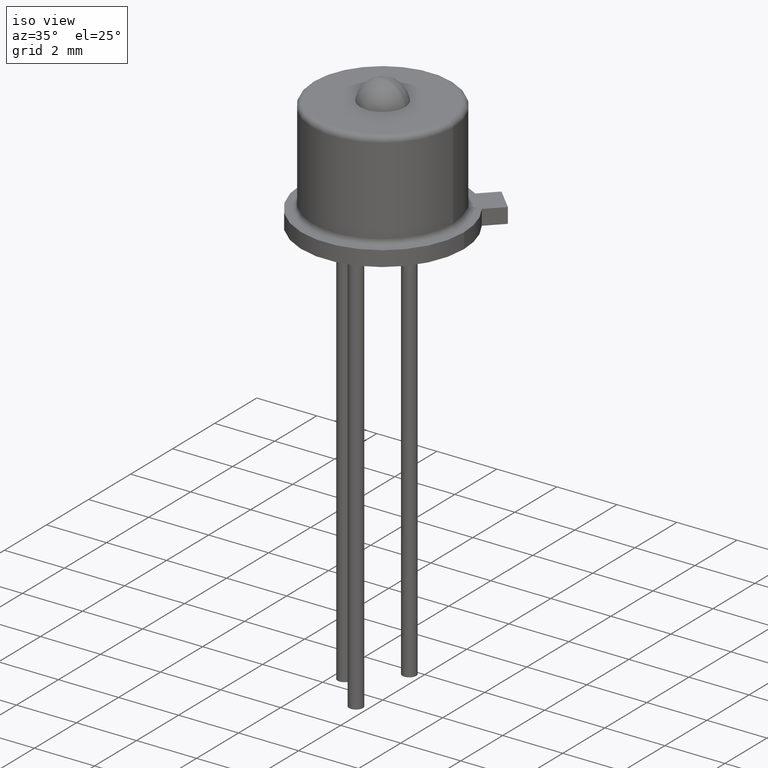
[diagram: clean part render]
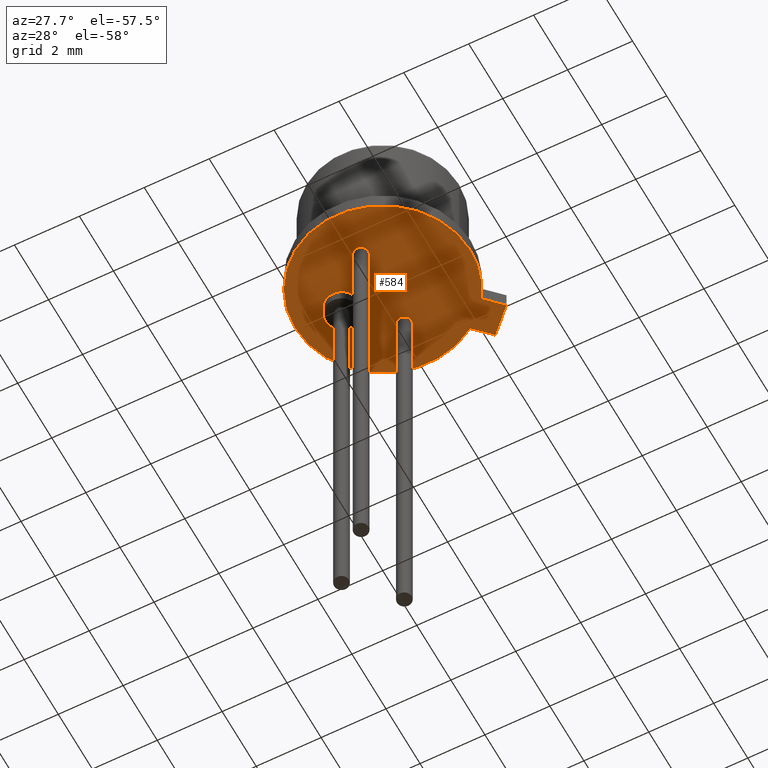
[diagram: tour spotlight — one face highlighted and labeled with its STEP entity id]
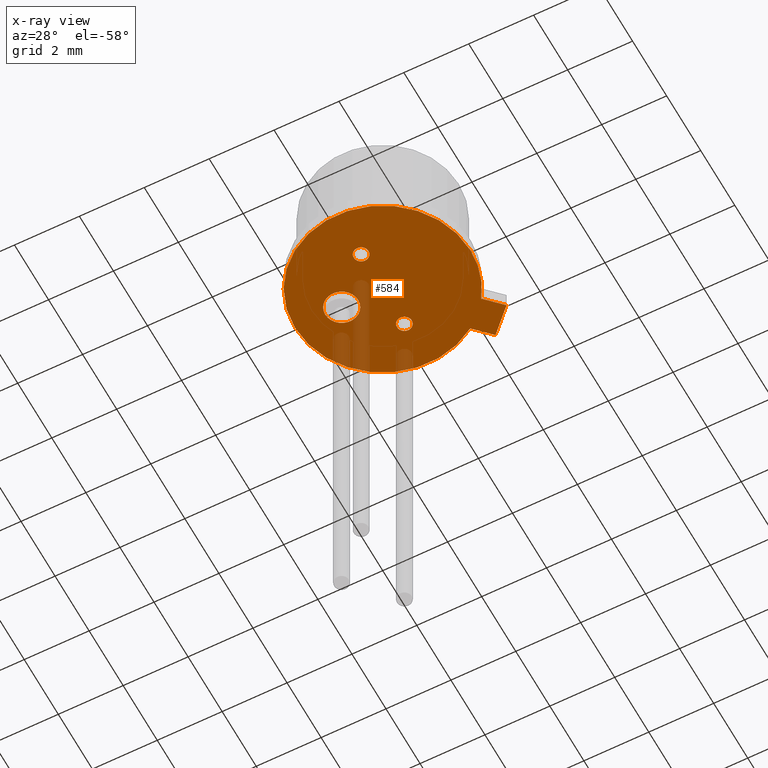
[diagram: x-ray of the same camera — body ghosted, this tour face saturated]
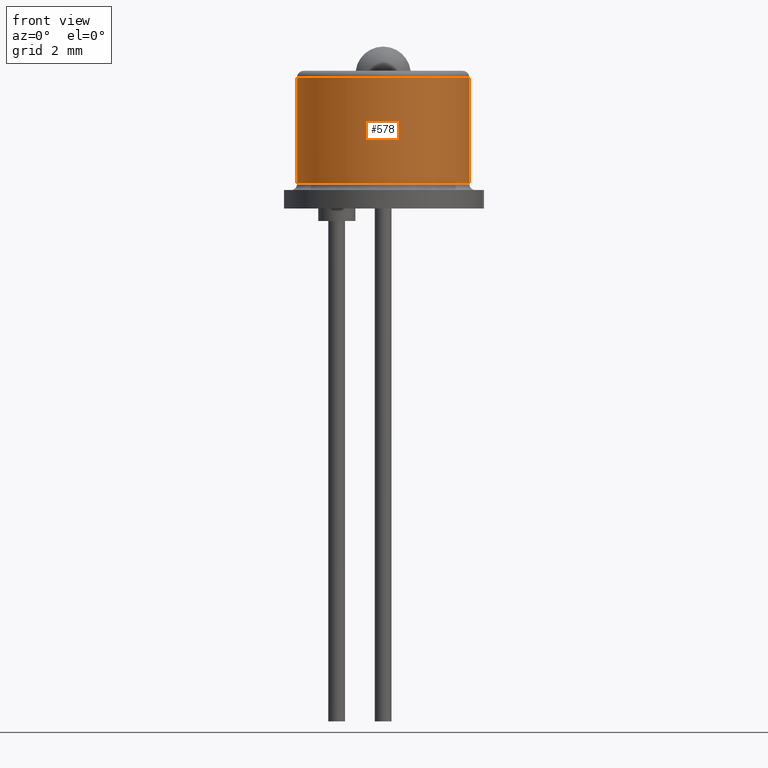
[diagram: tour spotlight — one face highlighted and labeled with its STEP entity id]
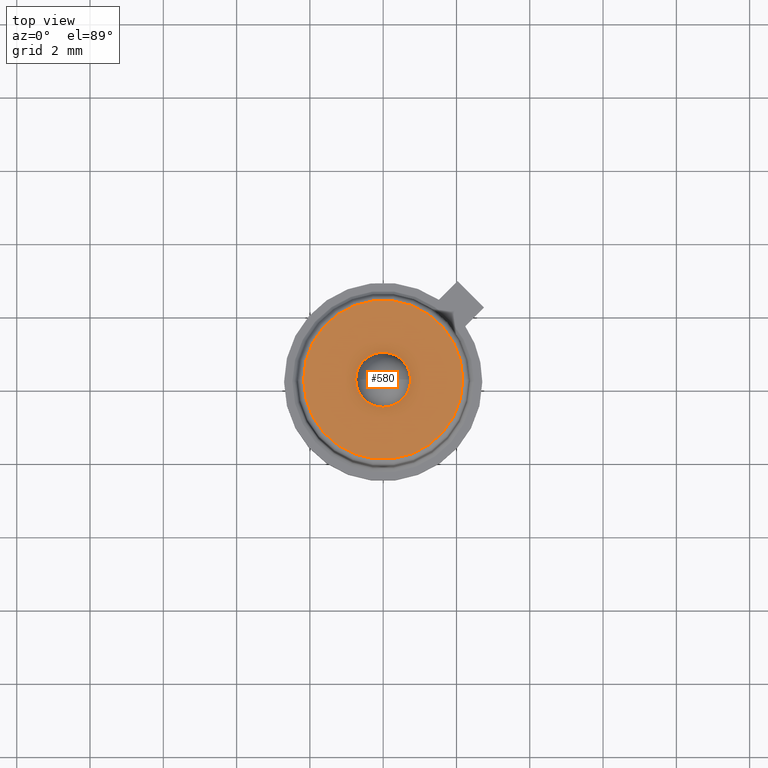
[diagram: tour spotlight — one face highlighted and labeled with its STEP entity id]
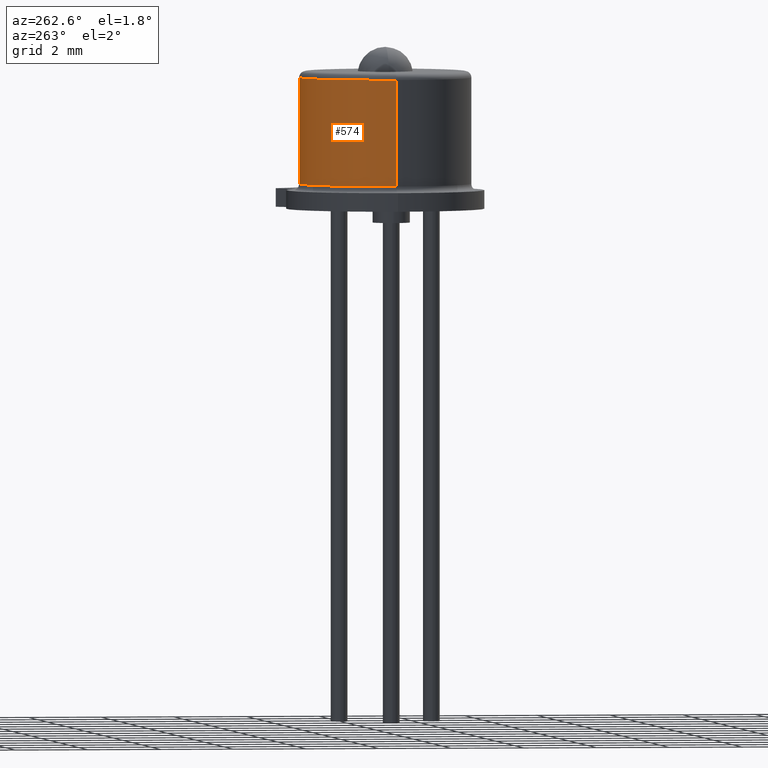
[diagram: tour spotlight — one face highlighted and labeled with its STEP entity id]
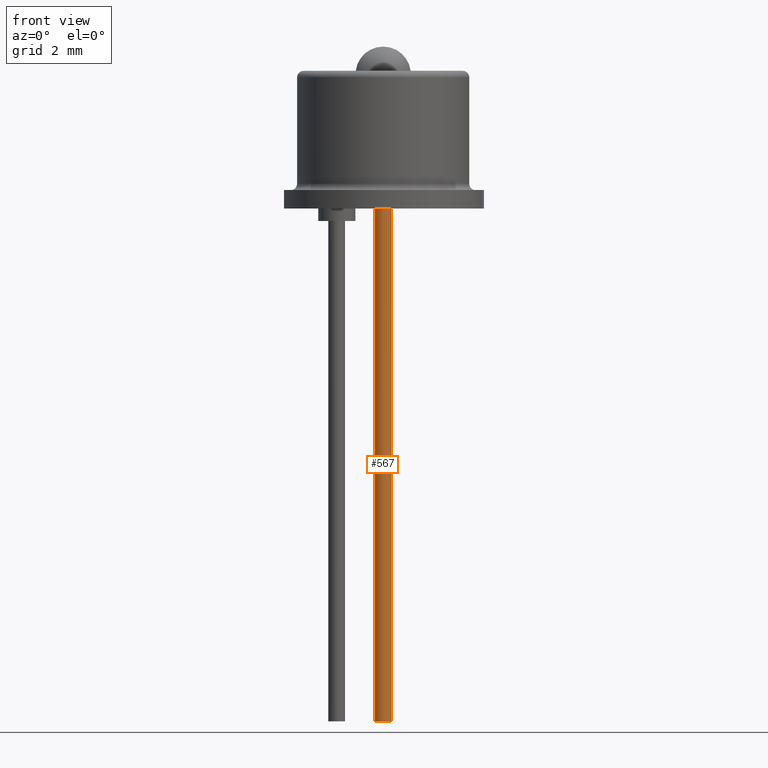
[diagram: tour spotlight — one face highlighted and labeled with its STEP entity id]
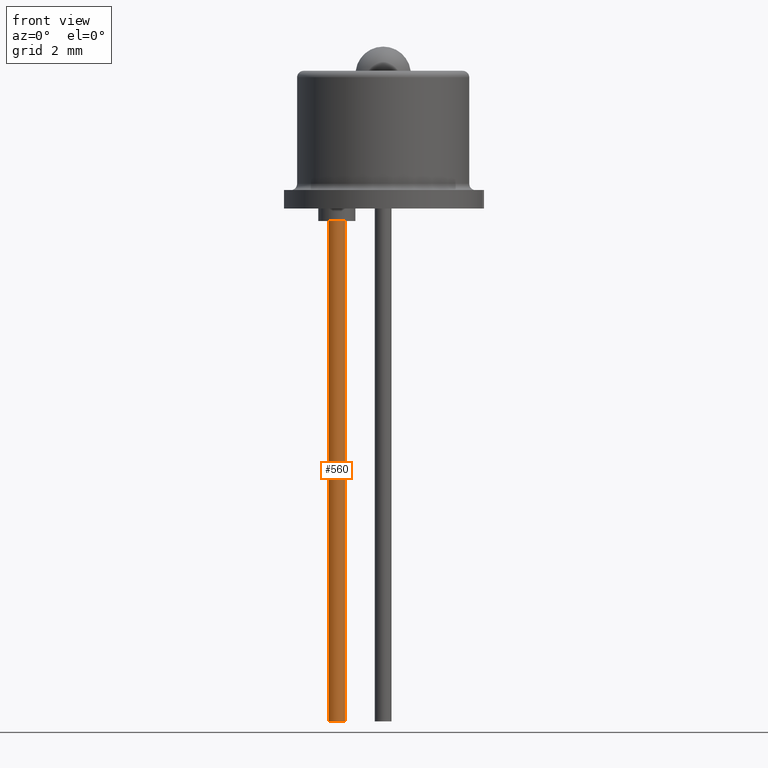
[diagram: tour spotlight — one face highlighted and labeled with its STEP entity id]
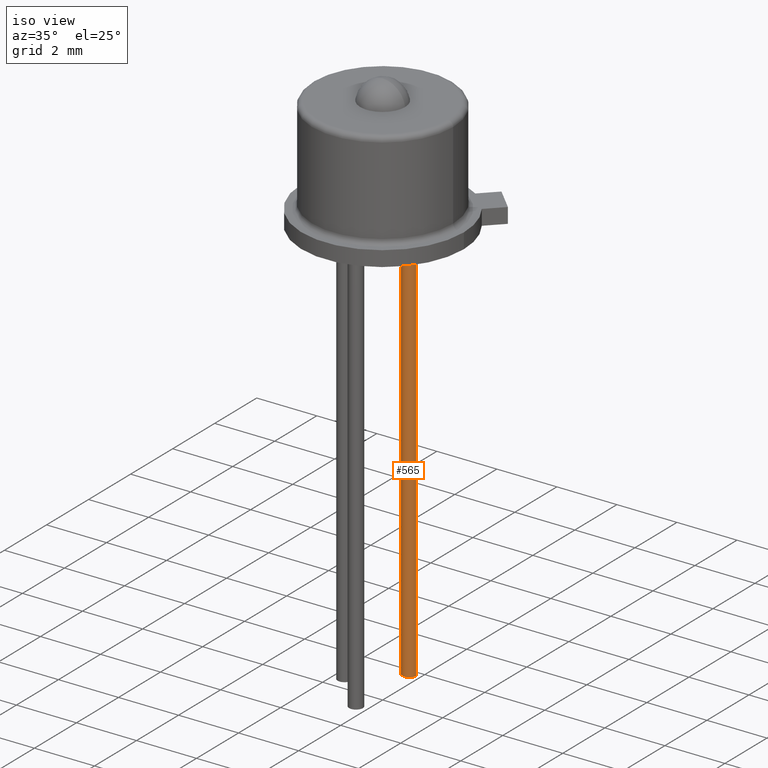
[diagram: tour spotlight — one face highlighted and labeled with its STEP entity id]
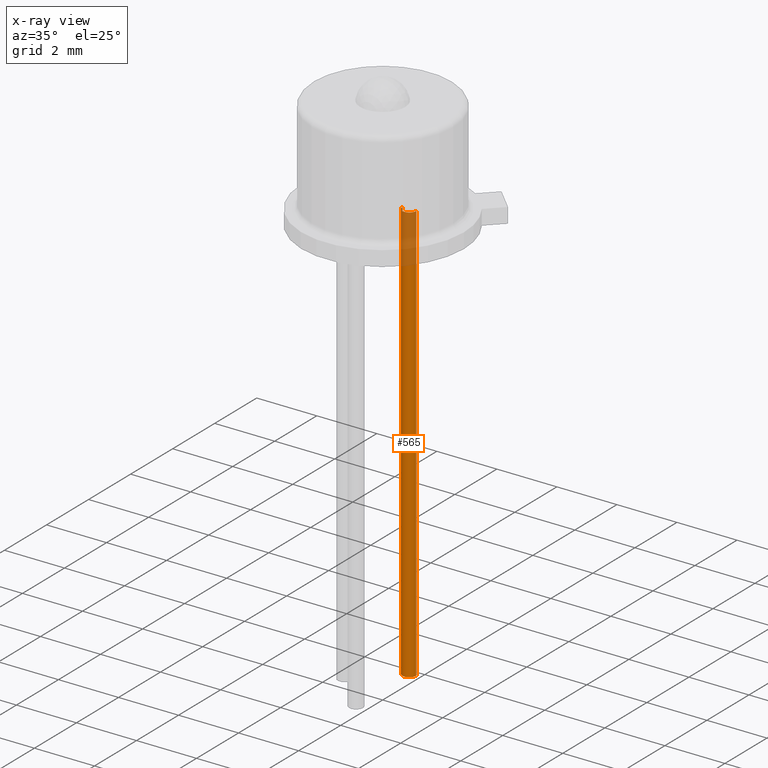
[diagram: x-ray of the same camera — body ghosted, this tour face saturated]
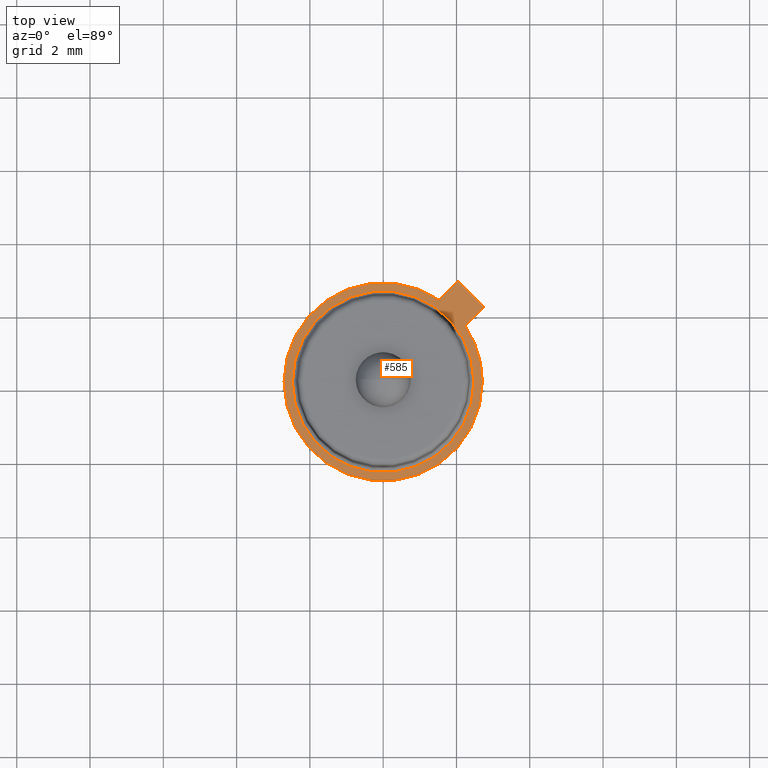
[diagram: tour spotlight — one face highlighted and labeled with its STEP entity id]
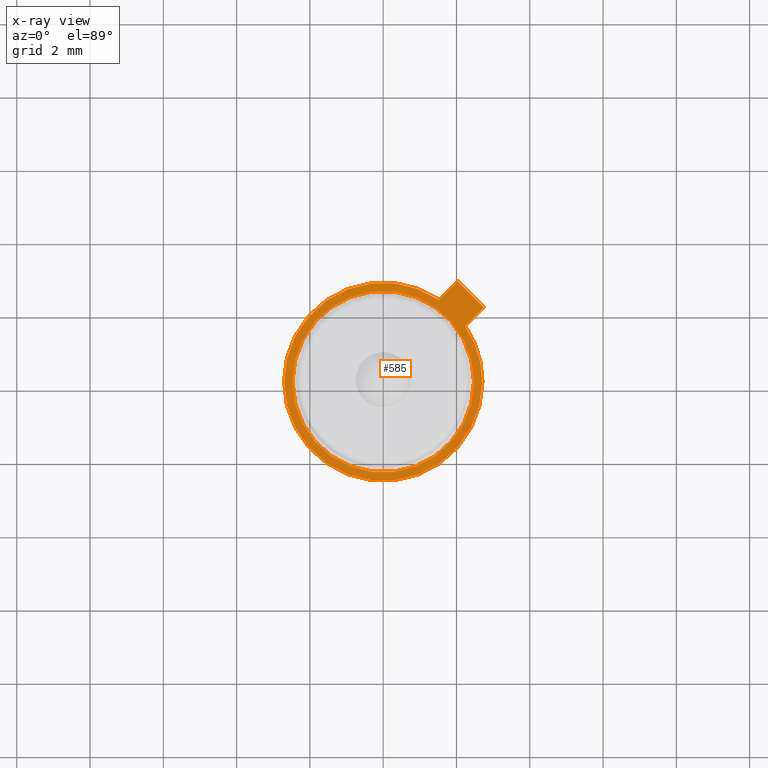
[diagram: x-ray of the same camera — body ghosted, this tour face saturated]
A machine part: a face-by-face anatomy tour. The part has 38 B-rep faces; the first image is the clean iso view, then the 8 largest visible faces are spotlighted one at a time (largest first), each with its STEP entity span.

Face 1 — auxiliary view, entity #584. An x-ray twin of the same camera follows (body ghosted, this face saturated) — the face is partly hidden behind the body. In plain terms, the highlighted planar face has unit normal (0, 0, 1).
Definition (entity closure, byte-faithful):
#48 = ORIENTED_EDGE ( 'NONE', *, *, #542, .F. ) ;
#49 = ORIENTED_EDGE ( 'NONE', *, *, #645, .F. ) ;
#50 = ORIENTED_EDGE ( 'NONE', *, *, #543, .F. ) ;
#51 = ORIENTED_EDGE ( 'NONE', *, *, #545, .F. ) ;
#52 = ORIENTED_EDGE ( 'NONE', *, *, #546, .F. ) ;
#53 = ORIENTED_EDGE ( 'NONE', *, *, #547, .F. ) ;
#54 = ORIENTED_EDGE ( 'NONE', *, *, #548, .F. ) ;
#55 = ORIENTED_EDGE ( 'NONE', *, *, #641, .F. ) ;
#163 = VERTEX_POINT ( 'NONE', #1517 ) ;
#164 = VERTEX_POINT ( 'NONE', #1518 ) ;
#167 = VERTEX_POINT ( 'NONE', #1521 ) ;
#168 = VERTEX_POINT ( 'NONE', #1522 ) ;
#171 = VERTEX_POINT ( 'NONE', #1525 ) ;
#172 = VERTEX_POINT ( 'NONE', #1526 ) ;
#180 = VERTEX_POINT ( 'NONE', #1534 ) ;
#190 = VERTEX_POINT ( 'NONE', #1544 ) ;
#191 = VERTEX_POINT ( 'NONE', #1545 ) ;
#192 = VERTEX_POINT ( 'NONE', #1546 ) ;
#194 = VERTEX_POINT ( 'NONE', #1548 ) ;
#195 = VERTEX_POINT ( 'NONE', #1549 ) ;
#203 = ORIENTED_EDGE ( 'NONE', *, *, #544, .F. ) ;
#204 = ORIENTED_EDGE ( 'NONE', *, *, #541, .F. ) ;
#205 = ORIENTED_EDGE ( 'NONE', *, *, #537, .F. ) ;
#206 = ORIENTED_EDGE ( 'NONE', *, *, #648, .F. ) ;
#209 = EDGE_LOOP ( 'NONE', ( #48, #49 ) ) ;
#211 = EDGE_LOOP ( 'NONE', ( #50, #206 ) ) ;
#223 = EDGE_LOOP ( 'NONE', ( #203, #205, #204, #51, #52, #53 ) ) ;
#227 = EDGE_LOOP ( 'NONE', ( #54, #55 ) ) ;
#275 = CARTESIAN_POINT ( 'NONE',  ( 0.0000000000000000000, 0.0000000000000000000, 0.0000000000000000000 ) ) ;
#276 = DIRECTION ( 'NONE',  ( 0.0000000000000000000, 0.0000000000000000000, 1.000000000000000000 ) ) ;
#277 = DIRECTION ( 'NONE',  ( 1.000000000000000000, 0.0000000000000000000, 0.0000000000000000000 ) ) ;
#279 = DIRECTION ( 'NONE',  ( 0.7071067811865482400, 0.7071067811865468000, -0.0000000000000000000 ) ) ;
#283 = DIRECTION ( 'NONE',  ( -0.7071067811865474600, -0.7071067811865474600, 0.0000000000000000000 ) ) ;
#284 = CARTESIAN_POINT ( 'NONE',  ( 0.0000000000000000000, 0.0000000000000000000, 0.0000000000000000000 ) ) ;
#285 = DIRECTION ( 'NONE',  ( 0.0000000000000000000, 0.0000000000000000000, 1.000000000000000000 ) ) ;
#286 = DIRECTION ( 'NONE',  ( 1.000000000000000000, 0.0000000000000000000, 0.0000000000000000000 ) ) ;
#287 = CARTESIAN_POINT ( 'NONE',  ( 1.024442997624098700E-016, 0.04999999999999998200, 0.0000000000000000000 ) ) ;
#288 = DIRECTION ( 'NONE',  ( -0.0000000000000000000, -0.0000000000000000000, -1.000000000000000000 ) ) ;
#289 = DIRECTION ( 'NONE',  ( 1.000000000000000000, 0.0000000000000000000, 0.0000000000000000000 ) ) ;
#290 = CARTESIAN_POINT ( 'NONE',  ( 0.1082538055589732800, 0.08001337493194495000, 0.0000000000000000000 ) ) ;
#291 = CARTESIAN_POINT ( 'NONE',  ( 0.0000000000000000000, -0.05000000000000000300, 0.0000000000000000000 ) ) ;
#292 = DIRECTION ( 'NONE',  ( -0.0000000000000000000, -0.0000000000000000000, -1.000000000000000000 ) ) ;
#293 = DIRECTION ( 'NONE',  ( 1.000000000000000000, 0.0000000000000000000, 0.0000000000000000000 ) ) ;
#294 = CARTESIAN_POINT ( 'NONE',  ( 0.1082538055589732800, 0.08001337493194495000, 0.0000000000000000000 ) ) ;
#295 = CARTESIAN_POINT ( 'NONE',  ( 0.08001337493194493600, 0.1082538055589732900, 0.0000000000000000000 ) ) ;
#296 = CARTESIAN_POINT ( 'NONE',  ( 0.0000000000000000000, 0.0000000000000000000, 0.0000000000000000000 ) ) ;
#297 = DIRECTION ( 'NONE',  ( 0.0000000000000000000, 0.0000000000000000000, 1.000000000000000000 ) ) ;
#298 = DIRECTION ( 'NONE',  ( 1.000000000000000000, 0.0000000000000000000, 0.0000000000000000000 ) ) ;
#299 = DIRECTION ( 'NONE',  ( -0.7071067811865474600, 0.7071067811865474600, 0.0000000000000000000 ) ) ;
#303 = CARTESIAN_POINT ( 'NONE',  ( -0.04978545538498040800, 0.0000000000000000000, 0.0000000000000000000 ) ) ;
#304 = DIRECTION ( 'NONE',  ( -0.0000000000000000000, -0.0000000000000000000, -1.000000000000000000 ) ) ;
#305 = DIRECTION ( 'NONE',  ( 1.000000000000000000, 0.0000000000000000000, 0.0000000000000000000 ) ) ;
#515 = DIRECTION ( 'NONE',  ( -0.0000000000000000000, -0.0000000000000000000, -1.000000000000000000 ) ) ;
#529 = DIRECTION ( 'NONE',  ( 1.000000000000000000, 0.0000000000000000000, 0.0000000000000000000 ) ) ;
#537 = EDGE_CURVE ( 'NONE', #191, #192, #1427, .T. ) ;
#541 = EDGE_CURVE ( 'NONE', #194, #191, #1433, .T. ) ;
#542 = EDGE_CURVE ( 'NONE', #168, #167, #1438, .T. ) ;
#543 = EDGE_CURVE ( 'NONE', #172, #171, #1436, .T. ) ;
#544 = EDGE_CURVE ( 'NONE', #192, #180, #1439, .T. ) ;
#545 = EDGE_CURVE ( 'NONE', #190, #194, #1441, .T. ) ;
#546 = EDGE_CURVE ( 'NONE', #195, #190, #1440, .T. ) ;
#547 = EDGE_CURVE ( 'NONE', #180, #195, #1443, .T. ) ;
#548 = EDGE_CURVE ( 'NONE', #164, #163, #1444, .T. ) ;
#584 = ADVANCED_FACE ( 'NONE', ( #1225, #1222, #1226, #1224 ), #1006, .F. ) ;
#641 = EDGE_CURVE ( 'NONE', #163, #164, #1312, .T. ) ;
#645 = EDGE_CURVE ( 'NONE', #167, #168, #1317, .T. ) ;
#648 = EDGE_CURVE ( 'NONE', #171, #172, #1328, .T. ) ;
#670 = AXIS2_PLACEMENT_3D ( 'NONE', #275, #276, #277 ) ;
#672 = AXIS2_PLACEMENT_3D ( 'NONE', #284, #285, #286 ) ;
#673 = AXIS2_PLACEMENT_3D ( 'NONE', #287, #288, #289 ) ;
#674 = AXIS2_PLACEMENT_3D ( 'NONE', #291, #292, #293 ) ;
#675 = AXIS2_PLACEMENT_3D ( 'NONE', #296, #297, #298 ) ;
#676 = AXIS2_PLACEMENT_3D ( 'NONE', #303, #304, #305 ) ;
#900 = AXIS2_PLACEMENT_3D ( 'NONE', #1014, #1015, #1016 ) ;
#1006 = PLANE ( 'NONE',  #900 ) ;
#1014 = CARTESIAN_POINT ( 'NONE',  ( 0.0000000000000000000, 0.0000000000000000000, 0.0000000000000000000 ) ) ;
#1015 = DIRECTION ( 'NONE',  ( 0.0000000000000000000, 0.0000000000000000000, 1.000000000000000000 ) ) ;
#1016 = DIRECTION ( 'NONE',  ( 1.000000000000000000, 0.0000000000000000000, -0.0000000000000000000 ) ) ;
#1204 = CARTESIAN_POINT ( 'NONE',  ( -0.04978545538498040800, 0.0000000000000000000, 0.0000000000000000000 ) ) ;
#1205 = DIRECTION ( 'NONE',  ( -0.0000000000000000000, -0.0000000000000000000, -1.000000000000000000 ) ) ;
#1206 = DIRECTION ( 'NONE',  ( 1.000000000000000000, 0.0000000000000000000, 0.0000000000000000000 ) ) ;
#1212 = CARTESIAN_POINT ( 'NONE',  ( 1.024442997624098700E-016, 0.04999999999999998200, 0.0000000000000000000 ) ) ;
#1213 = DIRECTION ( 'NONE',  ( -0.0000000000000000000, -0.0000000000000000000, -1.000000000000000000 ) ) ;
#1214 = DIRECTION ( 'NONE',  ( 1.000000000000000000, 0.0000000000000000000, 0.0000000000000000000 ) ) ;
#1220 = CARTESIAN_POINT ( 'NONE',  ( 0.0000000000000000000, -0.05000000000000000300, 0.0000000000000000000 ) ) ;
#1222 = FACE_BOUND ( 'NONE', #211, .T. ) ;
#1224 = FACE_BOUND ( 'NONE', #227, .T. ) ;
#1225 = FACE_BOUND ( 'NONE', #209, .T. ) ;
#1226 = FACE_OUTER_BOUND ( 'NONE', #223, .T. ) ;
#1312 = CIRCLE ( 'NONE', #1352, 0.01996900000000000100 ) ;
#1317 = CIRCLE ( 'NONE', #1354, 0.008999999999999997600 ) ;
#1328 = CIRCLE ( 'NONE', #1356, 0.008999999999999997600 ) ;
#1352 = AXIS2_PLACEMENT_3D ( 'NONE', #1204, #1205, #1206 ) ;
#1354 = AXIS2_PLACEMENT_3D ( 'NONE', #1212, #1213, #1214 ) ;
#1356 = AXIS2_PLACEMENT_3D ( 'NONE', #1220, #515, #529 ) ;
#1427 = CIRCLE ( 'NONE', #670, 0.1065000000000000100 ) ;
#1433 = CIRCLE ( 'NONE', #672, 0.1065000000000000100 ) ;
#1436 = CIRCLE ( 'NONE', #674, 0.008999999999999997600 ) ;
#1438 = CIRCLE ( 'NONE', #673, 0.008999999999999997600 ) ;
#1439 = LINE ( 'NONE', #290, #1442 ) ;
#1440 = LINE ( 'NONE', #295, #1445 ) ;
#1441 = CIRCLE ( 'NONE', #675, 0.1065000000000000100 ) ;
#1442 = VECTOR ( 'NONE', #279, 39.37007874015748100 ) ;
#1443 = LINE ( 'NONE', #294, #1447 ) ;
#1444 = CIRCLE ( 'NONE', #676, 0.01996900000000000100 ) ;
#1445 = VECTOR ( 'NONE', #283, 39.37007874015748900 ) ;
#1447 = VECTOR ( 'NONE', #299, 39.37007874015748900 ) ;
#1517 = CARTESIAN_POINT ( 'NONE',  ( -0.06975445538498041600, 2.445497193217349500E-018, 0.0000000000000000000 ) ) ;
#1518 = CARTESIAN_POINT ( 'NONE',  ( -0.02981645538498040400, 0.0000000000000000000, 0.0000000000000000000 ) ) ;
#1521 = CARTESIAN_POINT ( 'NONE',  ( -0.008999999999999895200, 0.04999999999999998200, 0.0000000000000000000 ) ) ;
#1522 = CARTESIAN_POINT ( 'NONE',  ( 0.009000000000000099900, 0.04999999999999998200, 0.0000000000000000000 ) ) ;
#1525 = CARTESIAN_POINT ( 'NONE',  ( -0.008999999999999997600, -0.05000000000000000300, 0.0000000000000000000 ) ) ;
#1526 = CARTESIAN_POINT ( 'NONE',  ( 0.008999999999999997600, -0.05000000000000000300, 0.0000000000000000000 ) ) ;
#1534 = CARTESIAN_POINT ( 'NONE',  ( 0.1082538055589732800, 0.08001337493194495000, 0.0000000000000000000 ) ) ;
#1544 = CARTESIAN_POINT ( 'NONE',  ( 0.05985102585154942300, 0.08809145647857778700, 0.0000000000000000000 ) ) ;
#1545 = CARTESIAN_POINT ( 'NONE',  ( 0.1065000000000000100, 1.304248841091931400E-017, 0.0000000000000000000 ) ) ;
#1546 = CARTESIAN_POINT ( 'NONE',  ( 0.08809145647857775900, 0.05985102585154945100, 0.0000000000000000000 ) ) ;
#1548 = CARTESIAN_POINT ( 'NONE',  ( -0.1065000000000000100, 0.0000000000000000000, 0.0000000000000000000 ) ) ;
#1549 = CARTESIAN_POINT ( 'NONE',  ( 0.08001337493194493600, 0.1082538055589732900, 0.0000000000000000000 ) ) ;

Face 2 — front view, entity #578. In plain terms, the highlighted cylindrical surface (partial cylindrical patch) has radius 2.3495 mm, axis along (-0, -0, -1).
Definition (entity closure, byte-faithful):
#100 = ORIENTED_EDGE ( 'NONE', *, *, #653, .F. ) ;
#101 = ORIENTED_EDGE ( 'NONE', *, *, #612, .T. ) ;
#102 = ORIENTED_EDGE ( 'NONE', *, *, #658, .T. ) ;
#103 = ORIENTED_EDGE ( 'NONE', *, *, #656, .F. ) ;
#173 = VERTEX_POINT ( 'NONE', #1527 ) ;
#174 = VERTEX_POINT ( 'NONE', #1528 ) ;
#175 = VERTEX_POINT ( 'NONE', #1529 ) ;
#176 = VERTEX_POINT ( 'NONE', #1530 ) ;
#238 = EDGE_LOOP ( 'NONE', ( #100, #101, #102, #103 ) ) ;
#504 = CARTESIAN_POINT ( 'NONE',  ( 0.0000000000000000000, 0.0000000000000000000, 0.01996900000000000100 ) ) ;
#505 = DIRECTION ( 'NONE',  ( -0.0000000000000000000, -0.0000000000000000000, -1.000000000000000000 ) ) ;
#514 = DIRECTION ( 'NONE',  ( -1.000000000000000000, 0.0000000000000000000, 0.0000000000000000000 ) ) ;
#578 = ADVANCED_FACE ( 'NONE', ( #799 ), #805, .T. ) ;
#612 = EDGE_CURVE ( 'NONE', #174, #173, #1281, .T. ) ;
#653 = EDGE_CURVE ( 'NONE', #174, #175, #1334, .T. ) ;
#656 = EDGE_CURVE ( 'NONE', #175, #176, #1338, .T. ) ;
#658 = EDGE_CURVE ( 'NONE', #173, #176, #1339, .T. ) ;
#799 = FACE_OUTER_BOUND ( 'NONE', #238, .T. ) ;
#805 = CYLINDRICAL_SURFACE ( 'NONE', #879, 0.09249999999999999900 ) ;
#879 = AXIS2_PLACEMENT_3D ( 'NONE', #504, #505, #514 ) ;
#943 = AXIS2_PLACEMENT_3D ( 'NONE', #1120, #1121, #1122 ) ;
#1120 = CARTESIAN_POINT ( 'NONE',  ( 0.0000000000000000000, 0.0000000000000000000, 0.1409999959614064700 ) ) ;
#1121 = DIRECTION ( 'NONE',  ( -0.0000000000000000000, -0.0000000000000000000, -1.000000000000000000 ) ) ;
#1122 = DIRECTION ( 'NONE',  ( -1.000000000000000000, 0.0000000000000000000, 0.0000000000000000000 ) ) ;
#1281 = CIRCLE ( 'NONE', #943, 0.09249999999999998500 ) ;
#1334 = LINE ( 'NONE', #1377, #1336 ) ;
#1336 = VECTOR ( 'NONE', #1378, 39.37007874015748100 ) ;
#1338 = CIRCLE ( 'NONE', #1362, 0.09249999999999999900 ) ;
#1339 = LINE ( 'NONE', #1385, #1341 ) ;
#1341 = VECTOR ( 'NONE', #1392, 39.37007874015748100 ) ;
#1362 = AXIS2_PLACEMENT_3D ( 'NONE', #1393, #1394, #1395 ) ;
#1377 = CARTESIAN_POINT ( 'NONE',  ( 0.09249999999999999900, 1.132798289211301800E-017, 0.01996900000000000100 ) ) ;
#1378 = DIRECTION ( 'NONE',  ( -0.0000000000000000000, -0.0000000000000000000, -1.000000000000000000 ) ) ;
#1385 = CARTESIAN_POINT ( 'NONE',  ( -0.09249999999999999900, 0.0000000000000000000, 0.01996900000000000100 ) ) ;
#1392 = DIRECTION ( 'NONE',  ( -0.0000000000000000000, -0.0000000000000000000, -1.000000000000000000 ) ) ;
#1393 = CARTESIAN_POINT ( 'NONE',  ( 0.0000000000000000000, 0.0000000000000000000, 0.02669046243955909600 ) ) ;
#1394 = DIRECTION ( 'NONE',  ( -0.0000000000000000000, -0.0000000000000000000, -1.000000000000000000 ) ) ;
#1395 = DIRECTION ( 'NONE',  ( -1.000000000000000000, 0.0000000000000000000, 0.0000000000000000000 ) ) ;
#1527 = CARTESIAN_POINT ( 'NONE',  ( -0.09249999999999998500, 0.0000000000000000000, 0.1409999959614064700 ) ) ;
#1528 = CARTESIAN_POINT ( 'NONE',  ( 0.09249999999999998500, 1.132798289211301200E-017, 0.1409999959614064700 ) ) ;
#1529 = CARTESIAN_POINT ( 'NONE',  ( 0.09249999999999999900, 1.132798289211301800E-017, 0.02669046243955909600 ) ) ;
#1530 = CARTESIAN_POINT ( 'NONE',  ( -0.09249999999999999900, 0.0000000000000000000, 0.02669046243955909600 ) ) ;

Face 3 — top view, entity #580. In plain terms, the highlighted planar face has unit normal (0, 0, 1).
Definition (entity closure, byte-faithful):
#92 = ORIENTED_EDGE ( 'NONE', *, *, #610, .T. ) ;
#93 = ORIENTED_EDGE ( 'NONE', *, *, #629, .T. ) ;
#94 = ORIENTED_EDGE ( 'NONE', *, *, #652, .F. ) ;
#95 = ORIENTED_EDGE ( 'NONE', *, *, #611, .F. ) ;
#154 = VERTEX_POINT ( 'NONE', #1500 ) ;
#177 = VERTEX_POINT ( 'NONE', #1531 ) ;
#178 = VERTEX_POINT ( 'NONE', #1532 ) ;
#181 = VERTEX_POINT ( 'NONE', #1535 ) ;
#232 = EDGE_LOOP ( 'NONE', ( #94, #95 ) ) ;
#236 = EDGE_LOOP ( 'NONE', ( #92, #93 ) ) ;
#528 = PLANE ( 'NONE',  #888 ) ;
#580 = ADVANCED_FACE ( 'NONE', ( #811, #808 ), #528, .T. ) ;
#610 = EDGE_CURVE ( 'NONE', #154, #181, #1279, .T. ) ;
#611 = EDGE_CURVE ( 'NONE', #178, #177, #1280, .T. ) ;
#629 = EDGE_CURVE ( 'NONE', #181, #154, #1294, .T. ) ;
#652 = EDGE_CURVE ( 'NONE', #177, #178, #1333, .T. ) ;
#808 = FACE_OUTER_BOUND ( 'NONE', #232, .T. ) ;
#811 = FACE_BOUND ( 'NONE', #236, .T. ) ;
#888 = AXIS2_PLACEMENT_3D ( 'NONE', #983, #984, #985 ) ;
#941 = AXIS2_PLACEMENT_3D ( 'NONE', #1114, #1115, #1116 ) ;
#942 = AXIS2_PLACEMENT_3D ( 'NONE', #1117, #1118, #1119 ) ;
#959 = AXIS2_PLACEMENT_3D ( 'NONE', #1173, #1174, #1175 ) ;
#983 = CARTESIAN_POINT ( 'NONE',  ( 0.0000000000000000000, 0.02949999999999998500, 0.1479999959614065100 ) ) ;
#984 = DIRECTION ( 'NONE',  ( 0.0000000000000000000, 0.0000000000000000000, 1.000000000000000000 ) ) ;
#985 = DIRECTION ( 'NONE',  ( 1.000000000000000000, 0.0000000000000000000, -0.0000000000000000000 ) ) ;
#1114 = CARTESIAN_POINT ( 'NONE',  ( 0.0000000000000000000, 0.0000000000000000000, 0.1479999959614064800 ) ) ;
#1115 = DIRECTION ( 'NONE',  ( -0.0000000000000000000, -0.0000000000000000000, -1.000000000000000000 ) ) ;
#1116 = DIRECTION ( 'NONE',  ( -1.000000000000000000, 0.0000000000000000000, 0.0000000000000000000 ) ) ;
#1117 = CARTESIAN_POINT ( 'NONE',  ( 0.0000000000000000000, 0.0000000000000000000, 0.1479999959614065100 ) ) ;
#1118 = DIRECTION ( 'NONE',  ( -0.0000000000000000000, -0.0000000000000000000, -1.000000000000000000 ) ) ;
#1119 = DIRECTION ( 'NONE',  ( -1.000000000000000000, 0.0000000000000000000, 0.0000000000000000000 ) ) ;
#1173 = CARTESIAN_POINT ( 'NONE',  ( 0.0000000000000000000, 0.0000000000000000000, 0.1479999959614064800 ) ) ;
#1174 = DIRECTION ( 'NONE',  ( -0.0000000000000000000, -0.0000000000000000000, -1.000000000000000000 ) ) ;
#1175 = DIRECTION ( 'NONE',  ( -1.000000000000000000, 0.0000000000000000000, 0.0000000000000000000 ) ) ;
#1279 = CIRCLE ( 'NONE', #941, 0.02949999999999998500 ) ;
#1280 = CIRCLE ( 'NONE', #942, 0.08549999999999997900 ) ;
#1294 = CIRCLE ( 'NONE', #959, 0.02949999999999998500 ) ;
#1333 = CIRCLE ( 'NONE', #1359, 0.08549999999999997900 ) ;
#1359 = AXIS2_PLACEMENT_3D ( 'NONE', #1382, #1383, #1384 ) ;
#1382 = CARTESIAN_POINT ( 'NONE',  ( 0.0000000000000000000, 0.0000000000000000000, 0.1479999959614065100 ) ) ;
#1383 = DIRECTION ( 'NONE',  ( -0.0000000000000000000, -0.0000000000000000000, -1.000000000000000000 ) ) ;
#1384 = DIRECTION ( 'NONE',  ( -1.000000000000000000, 0.0000000000000000000, 0.0000000000000000000 ) ) ;
#1500 = CARTESIAN_POINT ( 'NONE',  ( -0.02949999999999998500, 0.0000000000000000000, 0.1479999959614064800 ) ) ;
#1531 = CARTESIAN_POINT ( 'NONE',  ( -0.08549999999999997900, 0.0000000000000000000, 0.1479999959614065100 ) ) ;
#1532 = CARTESIAN_POINT ( 'NONE',  ( 0.08549999999999997900, 1.089935651241144100E-017, 0.1479999959614065100 ) ) ;
#1535 = CARTESIAN_POINT ( 'NONE',  ( 0.02949999999999998500, 3.612708057484690100E-018, 0.1479999959614064800 ) ) ;

Face 4 — auxiliary view, entity #574. In plain terms, the highlighted cylindrical surface (partial cylindrical patch) has radius 2.3495 mm, axis along (-0, -0, -1).
Definition (entity closure, byte-faithful):
#24 = ORIENTED_EDGE ( 'NONE', *, *, #654, .T. ) ;
#25 = ORIENTED_EDGE ( 'NONE', *, *, #653, .T. ) ;
#26 = ORIENTED_EDGE ( 'NONE', *, *, #651, .F. ) ;
#27 = ORIENTED_EDGE ( 'NONE', *, *, #658, .F. ) ;
#173 = VERTEX_POINT ( 'NONE', #1527 ) ;
#174 = VERTEX_POINT ( 'NONE', #1528 ) ;
#175 = VERTEX_POINT ( 'NONE', #1529 ) ;
#176 = VERTEX_POINT ( 'NONE', #1530 ) ;
#208 = EDGE_LOOP ( 'NONE', ( #24, #25, #26, #27 ) ) ;
#467 = CARTESIAN_POINT ( 'NONE',  ( 0.0000000000000000000, 0.0000000000000000000, 0.01996900000000000100 ) ) ;
#468 = DIRECTION ( 'NONE',  ( -0.0000000000000000000, -0.0000000000000000000, -1.000000000000000000 ) ) ;
#477 = DIRECTION ( 'NONE',  ( -1.000000000000000000, 0.0000000000000000000, 0.0000000000000000000 ) ) ;
#574 = ADVANCED_FACE ( 'NONE', ( #777 ), #786, .T. ) ;
#651 = EDGE_CURVE ( 'NONE', #176, #175, #1329, .T. ) ;
#653 = EDGE_CURVE ( 'NONE', #174, #175, #1334, .T. ) ;
#654 = EDGE_CURVE ( 'NONE', #173, #174, #1332, .T. ) ;
#658 = EDGE_CURVE ( 'NONE', #173, #176, #1339, .T. ) ;
#777 = FACE_OUTER_BOUND ( 'NONE', #208, .T. ) ;
#786 = CYLINDRICAL_SURFACE ( 'NONE', #863, 0.09249999999999999900 ) ;
#863 = AXIS2_PLACEMENT_3D ( 'NONE', #467, #468, #477 ) ;
#1329 = CIRCLE ( 'NONE', #1358, 0.09249999999999999900 ) ;
#1332 = CIRCLE ( 'NONE', #1360, 0.09249999999999998500 ) ;
#1334 = LINE ( 'NONE', #1377, #1336 ) ;
#1336 = VECTOR ( 'NONE', #1378, 39.37007874015748100 ) ;
#1339 = LINE ( 'NONE', #1385, #1341 ) ;
#1341 = VECTOR ( 'NONE', #1392, 39.37007874015748100 ) ;
#1358 = AXIS2_PLACEMENT_3D ( 'NONE', #1379, #1380, #1381 ) ;
#1360 = AXIS2_PLACEMENT_3D ( 'NONE', #1386, #1387, #1388 ) ;
#1377 = CARTESIAN_POINT ( 'NONE',  ( 0.09249999999999999900, 1.132798289211301800E-017, 0.01996900000000000100 ) ) ;
#1378 = DIRECTION ( 'NONE',  ( -0.0000000000000000000, -0.0000000000000000000, -1.000000000000000000 ) ) ;
#1379 = CARTESIAN_POINT ( 'NONE',  ( 0.0000000000000000000, 0.0000000000000000000, 0.02669046243955909600 ) ) ;
#1380 = DIRECTION ( 'NONE',  ( -0.0000000000000000000, -0.0000000000000000000, -1.000000000000000000 ) ) ;
#1381 = DIRECTION ( 'NONE',  ( -1.000000000000000000, 0.0000000000000000000, 0.0000000000000000000 ) ) ;
#1385 = CARTESIAN_POINT ( 'NONE',  ( -0.09249999999999999900, 0.0000000000000000000, 0.01996900000000000100 ) ) ;
#1386 = CARTESIAN_POINT ( 'NONE',  ( 0.0000000000000000000, 0.0000000000000000000, 0.1409999959614064700 ) ) ;
#1387 = DIRECTION ( 'NONE',  ( -0.0000000000000000000, -0.0000000000000000000, -1.000000000000000000 ) ) ;
#1388 = DIRECTION ( 'NONE',  ( -1.000000000000000000, 0.0000000000000000000, 0.0000000000000000000 ) ) ;
#1392 = DIRECTION ( 'NONE',  ( -0.0000000000000000000, -0.0000000000000000000, -1.000000000000000000 ) ) ;
#1527 = CARTESIAN_POINT ( 'NONE',  ( -0.09249999999999998500, 0.0000000000000000000, 0.1409999959614064700 ) ) ;
#1528 = CARTESIAN_POINT ( 'NONE',  ( 0.09249999999999998500, 1.132798289211301200E-017, 0.1409999959614064700 ) ) ;
#1529 = CARTESIAN_POINT ( 'NONE',  ( 0.09249999999999999900, 1.132798289211301800E-017, 0.02669046243955909600 ) ) ;
#1530 = CARTESIAN_POINT ( 'NONE',  ( -0.09249999999999999900, 0.0000000000000000000, 0.02669046243955909600 ) ) ;

Face 5 — front view, entity #567. In plain terms, the highlighted cylindrical surface (edge-blend (fillet) strip) has radius 0.2286 mm, axis along (-0, -0, 1).
Definition (entity closure, byte-faithful):
#110 = ORIENTED_EDGE ( 'NONE', *, *, #649, .F. ) ;
#111 = ORIENTED_EDGE ( 'NONE', *, *, #613, .F. ) ;
#112 = ORIENTED_EDGE ( 'NONE', *, *, #646, .T. ) ;
#113 = ORIENTED_EDGE ( 'NONE', *, *, #543, .T. ) ;
#165 = VERTEX_POINT ( 'NONE', #1519 ) ;
#166 = VERTEX_POINT ( 'NONE', #1520 ) ;
#171 = VERTEX_POINT ( 'NONE', #1525 ) ;
#172 = VERTEX_POINT ( 'NONE', #1526 ) ;
#235 = EDGE_LOOP ( 'NONE', ( #110, #111, #112, #113 ) ) ;
#291 = CARTESIAN_POINT ( 'NONE',  ( 0.0000000000000000000, -0.05000000000000000300, 0.0000000000000000000 ) ) ;
#292 = DIRECTION ( 'NONE',  ( -0.0000000000000000000, -0.0000000000000000000, -1.000000000000000000 ) ) ;
#293 = DIRECTION ( 'NONE',  ( 1.000000000000000000, 0.0000000000000000000, 0.0000000000000000000 ) ) ;
#393 = DIRECTION ( 'NONE',  ( -0.0000000000000000000, -0.0000000000000000000, 1.000000000000000000 ) ) ;
#406 = CARTESIAN_POINT ( 'NONE',  ( 0.0000000000000000000, -0.05000000000000000300, -0.5510000000000000500 ) ) ;
#415 = DIRECTION ( 'NONE',  ( 1.000000000000000000, 0.0000000000000000000, 0.0000000000000000000 ) ) ;
#543 = EDGE_CURVE ( 'NONE', #172, #171, #1436, .T. ) ;
#567 = ADVANCED_FACE ( 'NONE', ( #744 ), #753, .T. ) ;
#613 = EDGE_CURVE ( 'NONE', #166, #165, #1282, .T. ) ;
#646 = EDGE_CURVE ( 'NONE', #166, #172, #1325, .T. ) ;
#649 = EDGE_CURVE ( 'NONE', #165, #171, #1323, .T. ) ;
#674 = AXIS2_PLACEMENT_3D ( 'NONE', #291, #292, #293 ) ;
#719 = AXIS2_PLACEMENT_3D ( 'NONE', #406, #393, #415 ) ;
#744 = FACE_OUTER_BOUND ( 'NONE', #235, .T. ) ;
#753 = CYLINDRICAL_SURFACE ( 'NONE', #719, 0.008999999999999997600 ) ;
#944 = AXIS2_PLACEMENT_3D ( 'NONE', #1123, #1124, #1125 ) ;
#1123 = CARTESIAN_POINT ( 'NONE',  ( 0.0000000000000000000, -0.05000000000000000300, -0.5510000000000000500 ) ) ;
#1124 = DIRECTION ( 'NONE',  ( 0.0000000000000000000, 0.0000000000000000000, -1.000000000000000000 ) ) ;
#1125 = DIRECTION ( 'NONE',  ( -1.000000000000000000, 0.0000000000000000000, 0.0000000000000000000 ) ) ;
#1207 = DIRECTION ( 'NONE',  ( -0.0000000000000000000, -0.0000000000000000000, 1.000000000000000000 ) ) ;
#1211 = CARTESIAN_POINT ( 'NONE',  ( 0.008999999999999997600, -0.05000000000000000300, -0.5510000000000000500 ) ) ;
#1215 = DIRECTION ( 'NONE',  ( -0.0000000000000000000, -0.0000000000000000000, 1.000000000000000000 ) ) ;
#1219 = CARTESIAN_POINT ( 'NONE',  ( -0.008999999999999997600, -0.05000000000000000300, -0.5510000000000000500 ) ) ;
#1282 = CIRCLE ( 'NONE', #944, 0.008999999999999997600 ) ;
#1323 = LINE ( 'NONE', #1219, #1331 ) ;
#1325 = LINE ( 'NONE', #1211, #1327 ) ;
#1327 = VECTOR ( 'NONE', #1207, 39.37007874015748100 ) ;
#1331 = VECTOR ( 'NONE', #1215, 39.37007874015748100 ) ;
#1436 = CIRCLE ( 'NONE', #674, 0.008999999999999997600 ) ;
#1519 = CARTESIAN_POINT ( 'NONE',  ( -0.008999999999999997600, -0.05000000000000000300, -0.5510000000000000500 ) ) ;
#1520 = CARTESIAN_POINT ( 'NONE',  ( 0.008999999999999997600, -0.05000000000000000300, -0.5510000000000000500 ) ) ;
#1525 = CARTESIAN_POINT ( 'NONE',  ( -0.008999999999999997600, -0.05000000000000000300, 0.0000000000000000000 ) ) ;
#1526 = CARTESIAN_POINT ( 'NONE',  ( 0.008999999999999997600, -0.05000000000000000300, 0.0000000000000000000 ) ) ;

Face 6 — front view, entity #560. In plain terms, the highlighted cylindrical surface (edge-blend (fillet) strip) has radius 0.2286 mm, axis along (-0, -0, 1).
Definition (entity closure, byte-faithful):
#132 = ORIENTED_EDGE ( 'NONE', *, *, #637, .F. ) ;
#133 = ORIENTED_EDGE ( 'NONE', *, *, #617, .F. ) ;
#134 = ORIENTED_EDGE ( 'NONE', *, *, #639, .T. ) ;
#135 = ORIENTED_EDGE ( 'NONE', *, *, #616, .T. ) ;
#156 = VERTEX_POINT ( 'NONE', #1496 ) ;
#157 = VERTEX_POINT ( 'NONE', #1497 ) ;
#158 = VERTEX_POINT ( 'NONE', #1507 ) ;
#160 = VERTEX_POINT ( 'NONE', #1513 ) ;
#241 = EDGE_LOOP ( 'NONE', ( #132, #133, #134, #135 ) ) ;
#338 = DIRECTION ( 'NONE',  ( 1.000000000000000000, 0.0000000000000000000, 0.0000000000000000000 ) ) ;
#340 = CARTESIAN_POINT ( 'NONE',  ( -0.04999999999999991300, -9.390727478220904200E-017, -0.5510000000000000500 ) ) ;
#341 = DIRECTION ( 'NONE',  ( -0.0000000000000000000, -0.0000000000000000000, 1.000000000000000000 ) ) ;
#560 = ADVANCED_FACE ( 'NONE', ( #1475 ), #1477, .T. ) ;
#616 = EDGE_CURVE ( 'NONE', #160, #158, #1285, .T. ) ;
#617 = EDGE_CURVE ( 'NONE', #156, #157, #1286, .T. ) ;
#637 = EDGE_CURVE ( 'NONE', #157, #158, #1311, .T. ) ;
#639 = EDGE_CURVE ( 'NONE', #156, #160, #1314, .T. ) ;
#688 = AXIS2_PLACEMENT_3D ( 'NONE', #340, #341, #338 ) ;
#947 = AXIS2_PLACEMENT_3D ( 'NONE', #1132, #1133, #1134 ) ;
#948 = AXIS2_PLACEMENT_3D ( 'NONE', #1135, #1136, #1137 ) ;
#1132 = CARTESIAN_POINT ( 'NONE',  ( -0.04999999999999991300, -9.390727478220904200E-017, -0.01331299999999999300 ) ) ;
#1133 = DIRECTION ( 'NONE',  ( 0.0000000000000000000, 0.0000000000000000000, -1.000000000000000000 ) ) ;
#1134 = DIRECTION ( 'NONE',  ( -1.000000000000000000, 0.0000000000000000000, 0.0000000000000000000 ) ) ;
#1135 = CARTESIAN_POINT ( 'NONE',  ( -0.04999999999999991300, -9.390727478220904200E-017, -0.5510000000000000500 ) ) ;
#1136 = DIRECTION ( 'NONE',  ( -0.0000000000000000000, -0.0000000000000000000, -1.000000000000000000 ) ) ;
#1137 = DIRECTION ( 'NONE',  ( 1.000000000000000000, 0.0000000000000000000, 0.0000000000000000000 ) ) ;
#1185 = CARTESIAN_POINT ( 'NONE',  ( -0.05899999999999991400, -9.280509266297642700E-017, -0.5510000000000000500 ) ) ;
#1186 = DIRECTION ( 'NONE',  ( -0.0000000000000000000, -0.0000000000000000000, 1.000000000000000000 ) ) ;
#1190 = DIRECTION ( 'NONE',  ( -0.0000000000000000000, -0.0000000000000000000, 1.000000000000000000 ) ) ;
#1194 = CARTESIAN_POINT ( 'NONE',  ( -0.04099999999999991200, -9.390727478220904200E-017, -0.5510000000000000500 ) ) ;
#1285 = CIRCLE ( 'NONE', #947, 0.009000000000000001100 ) ;
#1286 = CIRCLE ( 'NONE', #948, 0.009000000000000001100 ) ;
#1311 = LINE ( 'NONE', #1185, #1313 ) ;
#1313 = VECTOR ( 'NONE', #1186, 39.37007874015748100 ) ;
#1314 = LINE ( 'NONE', #1194, #1316 ) ;
#1316 = VECTOR ( 'NONE', #1190, 39.37007874015748100 ) ;
#1475 = FACE_OUTER_BOUND ( 'NONE', #241, .T. ) ;
#1477 = CYLINDRICAL_SURFACE ( 'NONE', #688, 0.009000000000000001100 ) ;
#1496 = CARTESIAN_POINT ( 'NONE',  ( -0.04099999999999991200, -9.390727478220904200E-017, -0.5510000000000000500 ) ) ;
#1497 = CARTESIAN_POINT ( 'NONE',  ( -0.05899999999999991400, -9.280509266297642700E-017, -0.5510000000000000500 ) ) ;
#1507 = CARTESIAN_POINT ( 'NONE',  ( -0.05899999999999991400, -9.280509266297642700E-017, -0.01331299999999999300 ) ) ;
#1513 = CARTESIAN_POINT ( 'NONE',  ( -0.04099999999999991200, -9.390727478220904200E-017, -0.01331299999999999300 ) ) ;

Face 7 — iso view, entity #565. An x-ray twin of the same camera follows (body ghosted, this face saturated) — the face is partly hidden behind the body. In plain terms, the highlighted cylindrical surface (edge-blend (fillet) strip) has radius 0.2286 mm, axis along (-0, -0, 1).
Definition (entity closure, byte-faithful):
#116 = ORIENTED_EDGE ( 'NONE', *, *, #644, .F. ) ;
#117 = ORIENTED_EDGE ( 'NONE', *, *, #614, .F. ) ;
#118 = ORIENTED_EDGE ( 'NONE', *, *, #660, .T. ) ;
#119 = ORIENTED_EDGE ( 'NONE', *, *, #542, .T. ) ;
#161 = VERTEX_POINT ( 'NONE', #1515 ) ;
#162 = VERTEX_POINT ( 'NONE', #1516 ) ;
#167 = VERTEX_POINT ( 'NONE', #1521 ) ;
#168 = VERTEX_POINT ( 'NONE', #1522 ) ;
#244 = EDGE_LOOP ( 'NONE', ( #116, #117, #118, #119 ) ) ;
#287 = CARTESIAN_POINT ( 'NONE',  ( 1.024442997624098700E-016, 0.04999999999999998200, 0.0000000000000000000 ) ) ;
#288 = DIRECTION ( 'NONE',  ( -0.0000000000000000000, -0.0000000000000000000, -1.000000000000000000 ) ) ;
#289 = DIRECTION ( 'NONE',  ( 1.000000000000000000, 0.0000000000000000000, 0.0000000000000000000 ) ) ;
#371 = DIRECTION ( 'NONE',  ( -0.0000000000000000000, -0.0000000000000000000, 1.000000000000000000 ) ) ;
#383 = CARTESIAN_POINT ( 'NONE',  ( 1.024442997624098700E-016, 0.04999999999999998200, -0.5510000000000000500 ) ) ;
#392 = DIRECTION ( 'NONE',  ( 1.000000000000000000, 0.0000000000000000000, 0.0000000000000000000 ) ) ;
#542 = EDGE_CURVE ( 'NONE', #168, #167, #1438, .T. ) ;
#565 = ADVANCED_FACE ( 'NONE', ( #733 ), #742, .T. ) ;
#614 = EDGE_CURVE ( 'NONE', #162, #161, #1283, .T. ) ;
#644 = EDGE_CURVE ( 'NONE', #161, #167, #1322, .T. ) ;
#660 = EDGE_CURVE ( 'NONE', #162, #168, #1342, .T. ) ;
#673 = AXIS2_PLACEMENT_3D ( 'NONE', #287, #288, #289 ) ;
#709 = AXIS2_PLACEMENT_3D ( 'NONE', #383, #371, #392 ) ;
#733 = FACE_OUTER_BOUND ( 'NONE', #244, .T. ) ;
#742 = CYLINDRICAL_SURFACE ( 'NONE', #709, 0.008999999999999997600 ) ;
#945 = AXIS2_PLACEMENT_3D ( 'NONE', #1126, #1127, #1128 ) ;
#1126 = CARTESIAN_POINT ( 'NONE',  ( 1.024442997624098700E-016, 0.04999999999999998200, -0.5510000000000000500 ) ) ;
#1127 = DIRECTION ( 'NONE',  ( -0.0000000000000000000, -0.0000000000000000000, -1.000000000000000000 ) ) ;
#1128 = DIRECTION ( 'NONE',  ( 1.000000000000000000, 0.0000000000000000000, 0.0000000000000000000 ) ) ;
#1202 = CARTESIAN_POINT ( 'NONE',  ( -0.008999999999999895200, 0.04999999999999998200, -0.5510000000000000500 ) ) ;
#1203 = DIRECTION ( 'NONE',  ( -0.0000000000000000000, -0.0000000000000000000, 1.000000000000000000 ) ) ;
#1283 = CIRCLE ( 'NONE', #945, 0.008999999999999997600 ) ;
#1322 = LINE ( 'NONE', #1202, #1324 ) ;
#1324 = VECTOR ( 'NONE', #1203, 39.37007874015748100 ) ;
#1342 = LINE ( 'NONE', #1396, #1343 ) ;
#1343 = VECTOR ( 'NONE', #1397, 39.37007874015748100 ) ;
#1396 = CARTESIAN_POINT ( 'NONE',  ( 0.009000000000000099900, 0.04999999999999998200, -0.5510000000000000500 ) ) ;
#1397 = DIRECTION ( 'NONE',  ( -0.0000000000000000000, -0.0000000000000000000, 1.000000000000000000 ) ) ;
#1438 = CIRCLE ( 'NONE', #673, 0.008999999999999997600 ) ;
#1515 = CARTESIAN_POINT ( 'NONE',  ( -0.008999999999999895200, 0.04999999999999998200, -0.5510000000000000500 ) ) ;
#1516 = CARTESIAN_POINT ( 'NONE',  ( 0.009000000000000099900, 0.04999999999999998200, -0.5510000000000000500 ) ) ;
#1521 = CARTESIAN_POINT ( 'NONE',  ( -0.008999999999999895200, 0.04999999999999998200, 0.0000000000000000000 ) ) ;
#1522 = CARTESIAN_POINT ( 'NONE',  ( 0.009000000000000099900, 0.04999999999999998200, 0.0000000000000000000 ) ) ;

Face 8 — top view, entity #585. An x-ray twin of the same camera follows (body ghosted, this face saturated) — the face is partly hidden behind the body. In plain terms, the highlighted planar face has unit normal (0, 0, 1).
Definition (entity closure, byte-faithful):
#72 = ORIENTED_EDGE ( 'NONE', *, *, #659, .F. ) ;
#73 = ORIENTED_EDGE ( 'NONE', *, *, #556, .F. ) ;
#74 = ORIENTED_EDGE ( 'NONE', *, *, #550, .T. ) ;
#75 = ORIENTED_EDGE ( 'NONE', *, *, #552, .T. ) ;
#76 = ORIENTED_EDGE ( 'NONE', *, *, #554, .T. ) ;
#77 = ORIENTED_EDGE ( 'NONE', *, *, #555, .T. ) ;
#78 = ORIENTED_EDGE ( 'NONE', *, *, #539, .T. ) ;
#79 = ORIENTED_EDGE ( 'NONE', *, *, #535, .T. ) ;
#169 = VERTEX_POINT ( 'NONE', #1523 ) ;
#170 = VERTEX_POINT ( 'NONE', #1524 ) ;
#179 = VERTEX_POINT ( 'NONE', #1533 ) ;
#185 = VERTEX_POINT ( 'NONE', #1539 ) ;
#186 = VERTEX_POINT ( 'NONE', #1540 ) ;
#189 = VERTEX_POINT ( 'NONE', #1543 ) ;
#198 = VERTEX_POINT ( 'NONE', #1479 ) ;
#199 = VERTEX_POINT ( 'NONE', #1481 ) ;
#229 = EDGE_LOOP ( 'NONE', ( #74, #75, #76, #77, #78, #79 ) ) ;
#230 = EDGE_LOOP ( 'NONE', ( #72, #73 ) ) ;
#270 = CARTESIAN_POINT ( 'NONE',  ( 0.0000000000000000000, 0.0000000000000000000, 0.01996900000000000100 ) ) ;
#271 = DIRECTION ( 'NONE',  ( 0.0000000000000000000, 0.0000000000000000000, 1.000000000000000000 ) ) ;
#272 = DIRECTION ( 'NONE',  ( 1.000000000000000000, 0.0000000000000000000, 0.0000000000000000000 ) ) ;
#280 = CARTESIAN_POINT ( 'NONE',  ( 0.0000000000000000000, 0.0000000000000000000, 0.01996900000000000100 ) ) ;
#281 = DIRECTION ( 'NONE',  ( 0.0000000000000000000, 0.0000000000000000000, 1.000000000000000000 ) ) ;
#282 = DIRECTION ( 'NONE',  ( 1.000000000000000000, 0.0000000000000000000, 0.0000000000000000000 ) ) ;
#306 = CARTESIAN_POINT ( 'NONE',  ( 0.1082538055589732800, 0.08001337493194495000, 0.01996900000000000100 ) ) ;
#307 = DIRECTION ( 'NONE',  ( 0.7071067811865482400, 0.7071067811865468000, -0.0000000000000000000 ) ) ;
#310 = CARTESIAN_POINT ( 'NONE',  ( 0.1082538055589732800, 0.08001337493194495000, 0.01996900000000000100 ) ) ;
#311 = DIRECTION ( 'NONE',  ( -0.7071067811865474600, 0.7071067811865474600, 0.0000000000000000000 ) ) ;
#314 = CARTESIAN_POINT ( 'NONE',  ( 0.08001337493194493600, 0.1082538055589732900, 0.01996900000000000100 ) ) ;
#315 = DIRECTION ( 'NONE',  ( -0.7071067811865474600, -0.7071067811865474600, 0.0000000000000000000 ) ) ;
#317 = CARTESIAN_POINT ( 'NONE',  ( 0.0000000000000000000, 0.0000000000000000000, 0.01996900000000000100 ) ) ;
#318 = DIRECTION ( 'NONE',  ( 0.0000000000000000000, 0.0000000000000000000, 1.000000000000000000 ) ) ;
#319 = DIRECTION ( 'NONE',  ( 1.000000000000000000, 0.0000000000000000000, 0.0000000000000000000 ) ) ;
#322 = CARTESIAN_POINT ( 'NONE',  ( 0.0000000000000000000, 0.0000000000000000000, 0.01996900000000000100 ) ) ;
#323 = DIRECTION ( 'NONE',  ( 0.0000000000000000000, 0.0000000000000000000, 1.000000000000000000 ) ) ;
#324 = DIRECTION ( 'NONE',  ( -1.000000000000000000, 0.0000000000000000000, 0.0000000000000000000 ) ) ;
#535 = EDGE_CURVE ( 'NONE', #185, #186, #1429, .T. ) ;
#539 = EDGE_CURVE ( 'NONE', #179, #185, #1430, .T. ) ;
#550 = EDGE_CURVE ( 'NONE', #186, #189, #1449, .T. ) ;
#552 = EDGE_CURVE ( 'NONE', #189, #198, #1453, .T. ) ;
#554 = EDGE_CURVE ( 'NONE', #198, #199, #1457, .T. ) ;
#555 = EDGE_CURVE ( 'NONE', #199, #179, #1459, .T. ) ;
#556 = EDGE_CURVE ( 'NONE', #170, #169, #1462, .T. ) ;
#585 = ADVANCED_FACE ( 'NONE', ( #1230, #1234 ), #1019, .T. ) ;
#659 = EDGE_CURVE ( 'NONE', #169, #170, #1340, .T. ) ;
#669 = AXIS2_PLACEMENT_3D ( 'NONE', #270, #271, #272 ) ;
#671 = AXIS2_PLACEMENT_3D ( 'NONE', #280, #281, #282 ) ;
#677 = AXIS2_PLACEMENT_3D ( 'NONE', #317, #318, #319 ) ;
#678 = AXIS2_PLACEMENT_3D ( 'NONE', #322, #323, #324 ) ;
#905 = AXIS2_PLACEMENT_3D ( 'NONE', #1027, #1028, #1029 ) ;
#1019 = PLANE ( 'NONE',  #905 ) ;
#1027 = CARTESIAN_POINT ( 'NONE',  ( 0.0000000000000000000, 0.0000000000000000000, 0.01996900000000000100 ) ) ;
#1028 = DIRECTION ( 'NONE',  ( 0.0000000000000000000, 0.0000000000000000000, 1.000000000000000000 ) ) ;
#1029 = DIRECTION ( 'NONE',  ( 1.000000000000000000, 0.0000000000000000000, -0.0000000000000000000 ) ) ;
#1230 = FACE_BOUND ( 'NONE', #230, .T. ) ;
#1234 = FACE_OUTER_BOUND ( 'NONE', #229, .T. ) ;
#1340 = CIRCLE ( 'NONE', #1364, 0.09754502105545957700 ) ;
#1364 = AXIS2_PLACEMENT_3D ( 'NONE', #1401, #1402, #1403 ) ;
#1401 = CARTESIAN_POINT ( 'NONE',  ( 0.0000000000000000000, 0.0000000000000000000, 0.01996900000000000100 ) ) ;
#1402 = DIRECTION ( 'NONE',  ( 0.0000000000000000000, 0.0000000000000000000, 1.000000000000000000 ) ) ;
#1403 = DIRECTION ( 'NONE',  ( -1.000000000000000000, 0.0000000000000000000, 0.0000000000000000000 ) ) ;
#1429 = CIRCLE ( 'NONE', #669, 0.1065000000000000100 ) ;
#1430 = CIRCLE ( 'NONE', #671, 0.1065000000000000100 ) ;
#1449 = LINE ( 'NONE', #306, #1452 ) ;
#1452 = VECTOR ( 'NONE', #307, 39.37007874015748100 ) ;
#1453 = LINE ( 'NONE', #310, #1456 ) ;
#1456 = VECTOR ( 'NONE', #311, 39.37007874015748900 ) ;
#1457 = LINE ( 'NONE', #314, #1460 ) ;
#1459 = CIRCLE ( 'NONE', #677, 0.1065000000000000100 ) ;
#1460 = VECTOR ( 'NONE', #315, 39.37007874015748900 ) ;
#1462 = CIRCLE ( 'NONE', #678, 0.09754502105545957700 ) ;
#1479 = CARTESIAN_POINT ( 'NONE',  ( 0.08001337493194493600, 0.1082538055589732900, 0.01996900000000000100 ) ) ;
#1481 = CARTESIAN_POINT ( 'NONE',  ( 0.05985102585154942300, 0.08809145647857778700, 0.01996900000000000100 ) ) ;
#1523 = CARTESIAN_POINT ( 'NONE',  ( -0.09754502105545957700, 0.0000000000000000000, 0.01996900000000000100 ) ) ;
#1524 = CARTESIAN_POINT ( 'NONE',  ( 0.09754502105545957700, 1.194581978083297400E-017, 0.01996900000000000100 ) ) ;
#1533 = CARTESIAN_POINT ( 'NONE',  ( -0.1065000000000000100, 0.0000000000000000000, 0.01996900000000000100 ) ) ;
#1539 = CARTESIAN_POINT ( 'NONE',  ( 0.1065000000000000100, 1.304248841091931400E-017, 0.01996900000000000100 ) ) ;
#1540 = CARTESIAN_POINT ( 'NONE',  ( 0.08809145647857775900, 0.05985102585154945100, 0.01996900000000000100 ) ) ;
#1543 = CARTESIAN_POINT ( 'NONE',  ( 0.1082538055589732800, 0.08001337493194495000, 0.01996900000000000100 ) ) ;